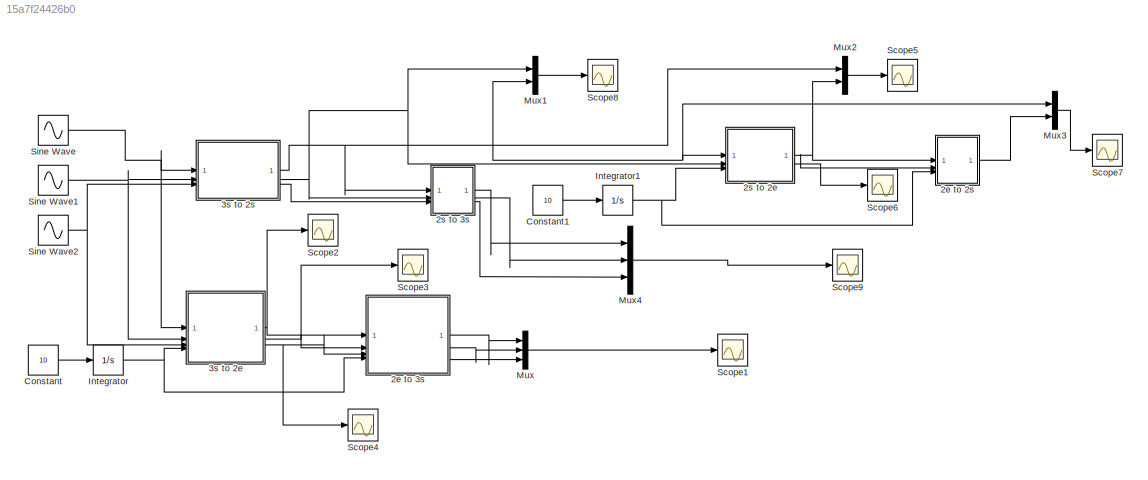
MODEL slx_15a7f24426b0
KIND model
CONFIG AbsTol = auto
CONFIG EnableMultiTasking = off
CONFIG FixedStep = auto
CONFIG MaxStep = auto
CONFIG MinStep = auto
CONFIG RelTol = 1e-3
CONFIG SampleTimeConstraint = Unconstrained
CONFIG SolverName = VariableStepAuto
CONFIG StartTime = 0.0
CONFIG StopTime = 2
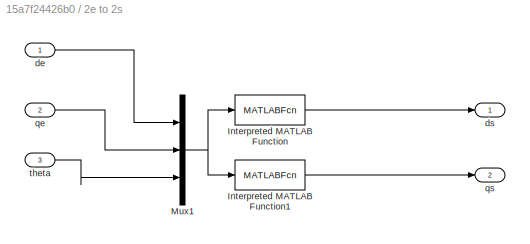
BLOCK [SubSystem] 2e to 2s
BLOCK [MATLABFcn] 2e to 2s/Interpreted MATLAB Function
  MATLABFcn = cos(u(3))*u(1)-sin(u(3))*u(2)
BLOCK [MATLABFcn] 2e to 2s/Interpreted MATLAB Function1
  MATLABFcn = sin(u(3))*u(1)+cos(u(3))*u(2)
BLOCK [Mux] 2e to 2s/Mux1
  DisplayOption = bar
  Inputs = 3
BLOCK [Inport] 2e to 2s/de
BLOCK [Outport] 2e to 2s/ds
BLOCK [Inport] 2e to 2s/qe
  Port = 2
BLOCK [Outport] 2e to 2s/qs
  Port = 2
BLOCK [Inport] 2e to 2s/theta
  Port = 3
BLOCK [SubSystem] 2e to 3s
  ReferencedSubsystem = s2e_to_3s
BLOCK [SubSystem] 2s to 2e
  ReferencedSubsystem = s2s22e
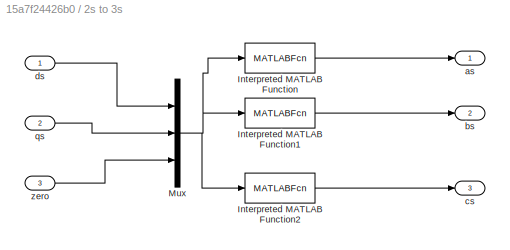
BLOCK [SubSystem] 2s to 3s
BLOCK [MATLABFcn] 2s to 3s/Interpreted MATLAB Function
  MATLABFcn = u(1)+u(3)
BLOCK [MATLABFcn] 2s to 3s/Interpreted MATLAB Function1
  MATLABFcn = -0.5*u(1)+sqrt(3)/2*u(2)+u(3)
BLOCK [MATLABFcn] 2s to 3s/Interpreted MATLAB Function2
  MATLABFcn = -0.5*u(1)-sqrt(3)/2*u(2)+u(3)
BLOCK [Mux] 2s to 3s/Mux
  DisplayOption = bar
  Inputs = 3
BLOCK [Outport] 2s to 3s/as
BLOCK [Outport] 2s to 3s/bs
  Port = 2
BLOCK [Outport] 2s to 3s/cs
  Port = 3
BLOCK [Inport] 2s to 3s/ds
BLOCK [Inport] 2s to 3s/qs
  Port = 2
BLOCK [Inport] 2s to 3s/zero
  Port = 3
BLOCK [SubSystem] 3s to 2e
  ReferencedSubsystem = s3s_to_2e
BLOCK [SubSystem] 3s to 2s
  ReferencedSubsystem = s3s_to_2s
BLOCK [Constant] Constant
  Value = 10
BLOCK [Constant] Constant1
  Value = 10
BLOCK [Integrator] Integrator
BLOCK [Integrator] Integrator1
BLOCK [Mux] Mux
  DisplayOption = bar
  Inputs = 3
BLOCK [Mux] Mux1
  DisplayOption = bar
  Inputs = 2
BLOCK [Mux] Mux2
  DisplayOption = bar
  Inputs = 2
BLOCK [Mux] Mux3
  DisplayOption = bar
  Inputs = 2
BLOCK [Mux] Mux4
  DisplayOption = bar
  Inputs = 3
BLOCK [Scope] Scope1
  Floating = off
  NumInputPorts = 1
  ScopeSpecificationString = Simulink.scopes.TimeScopeBlockCfg('CurrentConfiguration', extmgr.ConfigurationSet(extmgr.Configuration('Core','General UI',true),extmgr.Configuration('Core','Source UI',true),extmgr.Configuration('Sources','WiredSimulink',true,'DataLoggingVariableName','ScopeData1'),extmgr.Configuration('Visuals','Time Domain',true,'SerializedDisplays',{struct('MinYLimReal','-1.24646','MaxYLimReal','1.24913','YLab...<+1466ch>
BLOCK [Scope] Scope2
  Floating = off
  NumInputPorts = 1
  ScopeSpecificationString = Simulink.scopes.TimeScopeBlockCfg('CurrentConfiguration', extmgr.ConfigurationSet(extmgr.Configuration('Core','General UI',true),extmgr.Configuration('Core','Source UI',true),extmgr.Configuration('Sources','WiredSimulink',true,'DataLoggingVariableName','ScopeData2'),extmgr.Configuration('Visuals','Time Domain',true,'SerializedDisplays',{struct('MinYLimReal','-1.24646','MaxYLimReal','1.24913','YLab...<+1440ch>
BLOCK [Scope] Scope3
  Floating = off
  NumInputPorts = 1
  ScopeSpecificationString = Simulink.scopes.TimeScopeBlockCfg('CurrentConfiguration', extmgr.ConfigurationSet(extmgr.Configuration('Core','General UI',true),extmgr.Configuration('Core','Source UI',true),extmgr.Configuration('Sources','WiredSimulink',true,'DataLoggingVariableName','ScopeData3'),extmgr.Configuration('Visuals','Time Domain',true,'SerializedDisplays',{struct('MinYLimReal','-1.24646','MaxYLimReal','1.24913','YLab...<+1440ch>
BLOCK [Scope] Scope4
  Floating = off
  NumInputPorts = 1
  ScopeSpecificationString = Simulink.scopes.TimeScopeBlockCfg('CurrentConfiguration', extmgr.ConfigurationSet(extmgr.Configuration('Core','General UI',true),extmgr.Configuration('Core','Source UI',true),extmgr.Configuration('Sources','WiredSimulink',true,'DataLoggingVariableName','ScopeData1'),extmgr.Configuration('Visuals','Time Domain',true,'SerializedDisplays',{struct('MinYLimReal','-1.24646','MaxYLimReal','1.24913','YLab...<+1440ch>
BLOCK [Scope] Scope5
  Floating = off
  NumInputPorts = 1
  ScopeSpecificationString = Simulink.scopes.TimeScopeBlockCfg('CurrentConfiguration', extmgr.ConfigurationSet(extmgr.Configuration('Core','General UI',true),extmgr.Configuration('Core','Source UI',true),extmgr.Configuration('Sources','WiredSimulink',true,'DataLoggingVariableName','ScopeData2'),extmgr.Configuration('Visuals','Time Domain',true,'SerializedDisplays',{struct('MinYLimReal','-1.24646','MaxYLimReal','1.24913','YLab...<+1453ch>
BLOCK [Scope] Scope6
  Floating = off
  NumInputPorts = 1
  ScopeSpecificationString = Simulink.scopes.TimeScopeBlockCfg('CurrentConfiguration', extmgr.ConfigurationSet(extmgr.Configuration('Core','General UI',true),extmgr.Configuration('Core','Source UI',true),extmgr.Configuration('Sources','WiredSimulink',true,'DataLoggingVariableName','ScopeData3'),extmgr.Configuration('Visuals','Time Domain',true,'SerializedDisplays',{struct('MinYLimReal','-1.24646','MaxYLimReal','1.24913','YLab...<+1440ch>
BLOCK [Scope] Scope7
  Floating = off
  NumInputPorts = 1
  ScopeSpecificationString = Simulink.scopes.TimeScopeBlockCfg('CurrentConfiguration', extmgr.ConfigurationSet(extmgr.Configuration('Core','General UI',true),extmgr.Configuration('Core','Source UI',true),extmgr.Configuration('Sources','WiredSimulink',true,'DataLoggingVariableName','ScopeData4'),extmgr.Configuration('Visuals','Time Domain',true,'SerializedDisplays',{struct('MinYLimReal','-1.24646','MaxYLimReal','1.24913','YLab...<+1453ch>
BLOCK [Scope] Scope8
  Floating = off
  NumInputPorts = 1
  ScopeSpecificationString = Simulink.scopes.TimeScopeBlockCfg('CurrentConfiguration', extmgr.ConfigurationSet(extmgr.Configuration('Core','General UI',true),extmgr.Configuration('Core','Source UI',true),extmgr.Configuration('Sources','WiredSimulink',true,'DataLoggingVariableName','ScopeData5'),extmgr.Configuration('Visuals','Time Domain',true,'SerializedDisplays',{struct('MinYLimReal','-1.24646','MaxYLimReal','1.24913','YLab...<+1453ch>
BLOCK [Scope] Scope9
  Floating = off
  NumInputPorts = 1
  ScopeSpecificationString = Simulink.scopes.TimeScopeBlockCfg('CurrentConfiguration', extmgr.ConfigurationSet(extmgr.Configuration('Core','General UI',true),extmgr.Configuration('Core','Source UI',true),extmgr.Configuration('Sources','WiredSimulink',true,'DataLoggingVariableName','ScopeData6'),extmgr.Configuration('Visuals','Time Domain',true,'SerializedDisplays',{struct('MinYLimReal','-1.24646','MaxYLimReal','1.24913','YLab...<+1466ch>
BLOCK [Sin] Sine Wave
  Frequency = 10
BLOCK [Sin] Sine Wave1
  Frequency = 10
  Phase = -2*pi/3
BLOCK [Sin] Sine Wave2
  Frequency = 10
  Phase = 2*pi/3
LINE 2e to 2s/Interpreted MATLAB Function1:1 -> 2e to 2s/qs:1
LINE 2e to 2s/Interpreted MATLAB Function:1 -> 2e to 2s/ds:1
NET 2e to 2s/Mux1:1 -> 2e to 2s/Interpreted MATLAB Function1:1, 2e to 2s/Interpreted MATLAB Function:1
LINE 2e to 2s/de:1 -> 2e to 2s/Mux1:1
LINE 2e to 2s/qe:1 -> 2e to 2s/Mux1:2
LINE 2e to 2s/theta:1 -> 2e to 2s/Mux1:3
LINE 2e to 2s:1 -> Mux3:2
LINE 2e to 3s:1 -> Mux:1
LINE 2e to 3s:2 -> Mux:2
LINE 2e to 3s:3 -> Mux:3
NET 2s to 2e:1 -> 2e to 2s:1, Mux2:2
NET 2s to 2e:2 -> 2e to 2s:2, Scope6:1
LINE 2s to 3s/Interpreted MATLAB Function1:1 -> 2s to 3s/bs:1
LINE 2s to 3s/Interpreted MATLAB Function2:1 -> 2s to 3s/cs:1
LINE 2s to 3s/Interpreted MATLAB Function:1 -> 2s to 3s/as:1
NET 2s to 3s/Mux:1 -> 2s to 3s/Interpreted MATLAB Function1:1, 2s to 3s/Interpreted MATLAB Function2:1, 2s to 3s/Interpreted MATLAB Function:1
LINE 2s to 3s/ds:1 -> 2s to 3s/Mux:1
LINE 2s to 3s/qs:1 -> 2s to 3s/Mux:2
LINE 2s to 3s/zero:1 -> 2s to 3s/Mux:3
LINE 2s to 3s:1 -> Mux4:1
LINE 2s to 3s:2 -> Mux4:2
LINE 2s to 3s:3 -> Mux4:3
NET 3s to 2e:1 -> 2e to 3s:1, Scope2:1
NET 3s to 2e:2 -> 2e to 3s:2, Scope3:1
NET 3s to 2e:3 -> 2e to 3s:3, Scope4:1
NET 3s to 2s:1 -> 2s to 2e:1, 2s to 3s:1, Mux1:2, Mux2:1, Mux3:1
NET 3s to 2s:2 -> 2s to 2e:2, 2s to 3s:2, Mux1:1
LINE 3s to 2s:3 -> 2s to 3s:3
LINE Constant1:1 -> Integrator1:1
LINE Constant:1 -> Integrator:1
NET Integrator1:1 -> 2e to 2s:3, 2s to 2e:3
NET Integrator:1 -> 2e to 3s:4, 3s to 2e:4
LINE Mux1:1 -> Scope8:1
LINE Mux2:1 -> Scope5:1
LINE Mux3:1 -> Scope7:1
LINE Mux4:1 -> Scope9:1
LINE Mux:1 -> Scope1:1
NET Sine Wave1:1 -> 3s to 2e:2, 3s to 2s:2
NET Sine Wave2:1 -> 3s to 2e:3, 3s to 2s:3
NET Sine Wave:1 -> 3s to 2e:1, 3s to 2s:1
note: NET lines group one-source signal fan-out (src -> all destinations, sorted); 1:1 wires keep LINE
